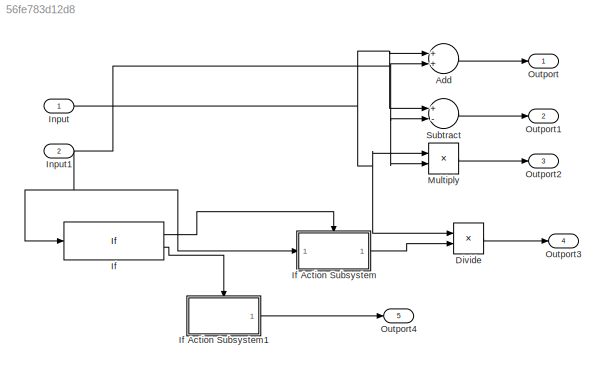
MODEL slx_56fe783d12d8
KIND model
CONFIG AbsTol = auto
CONFIG EnableMultiTasking = off
CONFIG FixedStep = auto
CONFIG MaxStep = auto
CONFIG MinStep = auto
CONFIG RelTol = 1e-3
CONFIG SampleTimeConstraint = Unconstrained
CONFIG Solver = VariableStepAuto
CONFIG SolverName = VariableStepAuto
CONFIG StartTime = 0.0
CONFIG StopTime = 10.0
BLOCK [Sum] Add
  InputSameDT = off
  OutDataTypeStr = Inherit: Inherit via internal rule
  Ports = [2, 1]
  SaturateOnIntegerOverflow = off
BLOCK [Product] Divide
  InputSameDT = off
  Inputs = */
  OutDataTypeStr = Inherit: Inherit via internal rule
  Ports = [2, 1]
  RndMeth = Floor
  SaturateOnIntegerOverflow = off
BLOCK [If] If
  Ports = [1, 2]
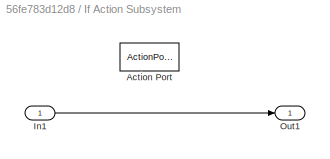
BLOCK [SubSystem] If Action Subsystem
  Ports = [1, 1, 0, 0, 0, 0, 0, 1]
  RequestExecContextInheritance = off
  TreatAsAtomicUnit = on
BLOCK [ActionPort] If Action Subsystem/Action Port
  ActionType = then
BLOCK [Inport] If Action Subsystem/In1
  IconDisplay = Port number
BLOCK [Outport] If Action Subsystem/Out1
  IconDisplay = Port number
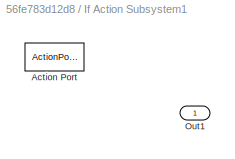
BLOCK [SubSystem] If Action Subsystem1
  Ports = [0, 1, 0, 0, 0, 0, 0, 1]
  RequestExecContextInheritance = off
  TreatAsAtomicUnit = on
BLOCK [ActionPort] If Action Subsystem1/Action Port
  ActionType = else
BLOCK [Outport] If Action Subsystem1/Out1
  IconDisplay = Port number
BLOCK [Inport] Input
  IconDisplay = Port number
  OutDataTypeStr = uint8
BLOCK [Inport] Input1
  IconDisplay = Port number
  OutDataTypeStr = uint8
  Port = 2
BLOCK [Product] Multiply
  InputSameDT = off
  OutDataTypeStr = Inherit: Inherit via internal rule
  Ports = [2, 1]
  RndMeth = Floor
  SaturateOnIntegerOverflow = off
BLOCK [Outport] Outport
  IconDisplay = Port number
  SignalName = AddOut
BLOCK [Outport] Outport1
  IconDisplay = Port number
  Port = 2
  SignalName = SubOut
BLOCK [Outport] Outport2
  IconDisplay = Port number
  Port = 3
  SignalName = MulOut
BLOCK [Outport] Outport3
  IconDisplay = Port number
  Port = 4
  SignalName = divideOut
BLOCK [Outport] Outport4
  IconDisplay = Port number
  Port = 5
  SignalName = ErrorFlag
BLOCK [Sum] Subtract
  InputSameDT = off
  Inputs = +-
  OutDataTypeStr = Inherit: Inherit via internal rule
  Ports = [2, 1]
  SaturateOnIntegerOverflow = off
LINE Add:1 -> Outport:1
LINE Divide:1 -> Outport3:1
LINE If Action Subsystem/In1:1 -> If Action Subsystem/Out1:1
LINE If Action Subsystem1:1 -> Outport4:1
LINE If Action Subsystem:1 -> Divide:2
LINE If:1 -> If Action Subsystem:ifaction
LINE If:2 -> If Action Subsystem1:ifaction
NET Input1:1 -> Add:2, If Action Subsystem:1, If:1, Multiply:2, Subtract:2
NET Input:1 -> Add:1, Divide:1, Multiply:1, Subtract:1
LINE Multiply:1 -> Outport2:1
LINE Subtract:1 -> Outport1:1
note: NET lines group one-source signal fan-out (src -> all destinations, sorted); 1:1 wires keep LINE
